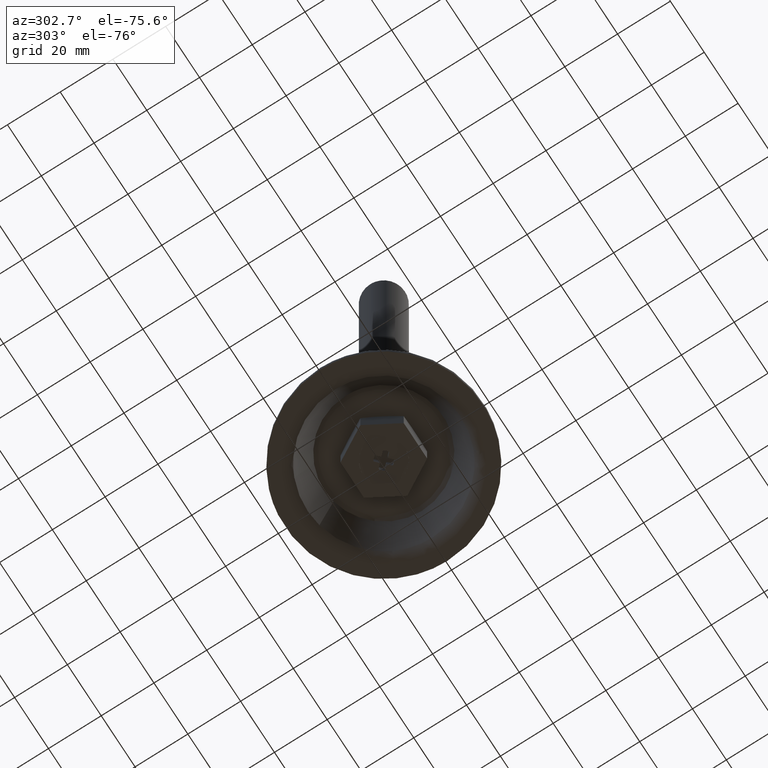
[diagram: clean part render]
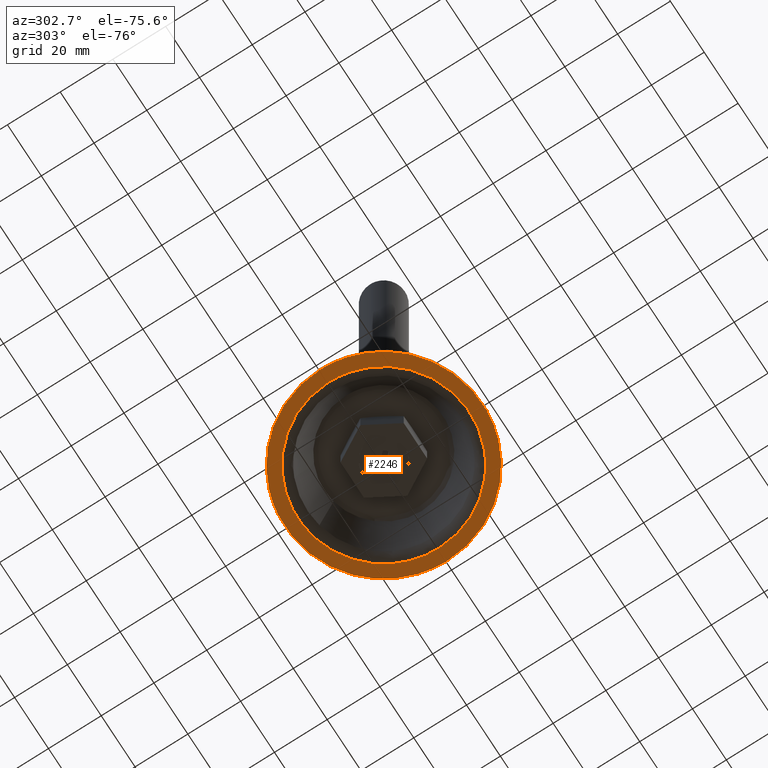
[diagram: same view with one face highlighted and labeled with its STEP entity id]
A machine part, auxiliary view. The second image highlights one B-rep face of the part: STEP entity #2246.
In plain terms, the highlighted face is a freeform B-spline surface patch.
Its self-contained STEP definition (entity closure, byte-faithful):
#1165=CARTESIAN_POINT('',(-4.426275188938440,37.237858262146503,4.130729E-013));
#1166=VERTEX_POINT('',#1165);
#1167=CARTESIAN_POINT('',(37.500000000000000,0.0,0.0));
#1168=VERTEX_POINT('',#1167);
#1169=CARTESIAN_POINT('',(-4.426275188938440,37.237858262146496,4.130729E-013));
#1170=CARTESIAN_POINT('',(-2.220900136086220,37.500000000000007,0.0));
#1171=CARTESIAN_POINT('',(0.0,37.500000000000000,0.0));
#1172=CARTESIAN_POINT('',(37.500000000000000,37.500000000000000,0.0));
#1173=CARTESIAN_POINT('',(37.500000000000000,0.0,0.0));
#1181=(BOUNDED_CURVE()B_SPLINE_CURVE(2,(#1169,#1170,#1171,#1172,#1173),.UNSPECIFIED.,.F.,.U.)B_SPLINE_CURVE_WITH_KNOTS((3,2,3),(0.229562512595084,0.250000000000000,0.500000000000000),.UNSPECIFIED.)CURVE()GEOMETRIC_REPRESENTATION_ITEM()RATIONAL_B_SPLINE_CURVE((0.956026830785202,0.976055994118060,1.0,0.707106781186547,1.0))REPRESENTATION_ITEM(''));
#1182=EDGE_CURVE('',#1166,#1168,#1181,.T.);
#1223=CARTESIAN_POINT('',(2.289264045361970,-37.430058377291417,5.853172E-012));
#1224=VERTEX_POINT('',#1223);
#1230=CARTESIAN_POINT('',(37.500000000000000,0.0,0.0));
#1231=CARTESIAN_POINT('',(37.500000000000007,-35.276530562357387,0.0));
#1232=CARTESIAN_POINT('',(2.289264045361970,-37.430058377291417,5.853172E-012));
#1240=(BOUNDED_CURVE()B_SPLINE_CURVE(2,(#1230,#1231,#1232),.UNSPECIFIED.,.F.,.U.)B_SPLINE_CURVE_WITH_KNOTS((3,3),(0.500000000000000,0.739333221256336),.UNSPECIFIED.)CURVE()GEOMETRIC_REPRESENTATION_ITEM()RATIONAL_B_SPLINE_CURVE((1.0,0.719603689828958,0.976072596790927))REPRESENTATION_ITEM(''));
#1241=EDGE_CURVE('',#1168,#1224,#1240,.T.);
#1264=CARTESIAN_POINT('',(-37.500000000000000,0.0,0.0));
#1265=VERTEX_POINT('',#1264);
#1266=CARTESIAN_POINT('',(-37.500000000000000,0.0,0.0));
#1267=CARTESIAN_POINT('',(-37.500000000000000,33.306552479027509,0.0));
#1268=CARTESIAN_POINT('',(-4.426275188938440,37.237858262146496,4.130729E-013));
#1276=(BOUNDED_CURVE()B_SPLINE_CURVE(2,(#1266,#1267,#1268),.UNSPECIFIED.,.F.,.U.)B_SPLINE_CURVE_WITH_KNOTS((3,3),(0.0,0.229562512595084),.UNSPECIFIED.)CURVE()GEOMETRIC_REPRESENTATION_ITEM()RATIONAL_B_SPLINE_CURVE((1.0,0.731050787068488,0.956026830785202))REPRESENTATION_ITEM(''));
#1277=EDGE_CURVE('',#1265,#1166,#1276,.T.);
#1279=CARTESIAN_POINT('',(2.289264045361970,-37.430058377291417,5.853172E-012));
#1280=CARTESIAN_POINT('',(1.145700451331012,-37.500000000000000,0.0));
#1281=CARTESIAN_POINT('',(0.0,-37.500000000000000,0.0));
#1282=CARTESIAN_POINT('',(-37.500000000000000,-37.500000000000000,0.0));
#1283=CARTESIAN_POINT('',(-37.500000000000000,0.0,0.0));
#1291=(BOUNDED_CURVE()B_SPLINE_CURVE(2,(#1279,#1280,#1281,#1282,#1283),.UNSPECIFIED.,.F.,.U.)B_SPLINE_CURVE_WITH_KNOTS((3,2,3),(0.739333221256336,0.750000000000000,1.0),.UNSPECIFIED.)CURVE()GEOMETRIC_REPRESENTATION_ITEM()RATIONAL_B_SPLINE_CURVE((0.976072596790927,0.987503091357590,1.0,0.707106781186547,1.0))REPRESENTATION_ITEM(''));
#1292=EDGE_CURVE('',#1224,#1265,#1291,.T.);
#1761=CARTESIAN_POINT('',(13.274496827823000,-29.701465750547019,6.899816E-016));
#1762=VERTEX_POINT('',#1761);
#1776=CARTESIAN_POINT('',(-32.532896183340213,0.0,0.0));
#1777=VERTEX_POINT('',#1776);
#1778=CARTESIAN_POINT('',(13.274496827822997,-29.701465750547019,6.899816E-016));
#1779=CARTESIAN_POINT('',(6.939218364442003,-32.532896183340213,0.0));
#1780=CARTESIAN_POINT('',(0.0,-32.532896183340213,0.0));
#1781=CARTESIAN_POINT('',(-32.532896183340213,-32.532896183340213,0.0));
#1782=CARTESIAN_POINT('',(-32.532896183340213,0.0,0.0));
#1790=(BOUNDED_CURVE()B_SPLINE_CURVE(2,(#1778,#1779,#1780,#1781,#1782),.UNSPECIFIED.,.F.,.U.)B_SPLINE_CURVE_WITH_KNOTS((3,2,3),(0.680709483574477,0.750000000000000,1.0),.UNSPECIFIED.)CURVE()GEOMETRIC_REPRESENTATION_ITEM()RATIONAL_B_SPLINE_CURVE((0.882641638328805,0.918821110443529,1.0,0.707106781186547,1.0))REPRESENTATION_ITEM(''));
#1791=EDGE_CURVE('',#1762,#1777,#1790,.T.);
#1793=CARTESIAN_POINT('',(28.893650885810590,14.951463893527560,6.131464E-016));
#1794=VERTEX_POINT('',#1793);
#1795=CARTESIAN_POINT('',(-32.532896183340213,0.0,0.0));
#1796=CARTESIAN_POINT('',(-32.532896183340213,32.532896183340213,0.0));
#1797=CARTESIAN_POINT('',(0.0,32.532896183340213,0.0));
#1798=CARTESIAN_POINT('',(19.795868431316350,32.532896183340206,0.0));
#1799=CARTESIAN_POINT('',(28.893650885810583,14.951463893527558,6.131464E-016));
#1807=(BOUNDED_CURVE()B_SPLINE_CURVE(2,(#1795,#1796,#1797,#1798,#1799),.UNSPECIFIED.,.F.,.U.)B_SPLINE_CURVE_WITH_KNOTS((3,2,3),(0.0,0.250000000000000,0.421825371003047),.UNSPECIFIED.)CURVE()GEOMETRIC_REPRESENTATION_ITEM()RATIONAL_B_SPLINE_CURVE((1.0,0.707106781186547,1.0,0.798694056052407,0.874103860136125))REPRESENTATION_ITEM(''));
#1808=EDGE_CURVE('',#1777,#1794,#1807,.T.);
#1855=CARTESIAN_POINT('',(32.532896183340213,0.0,0.0));
#1856=VERTEX_POINT('',#1855);
#1857=CARTESIAN_POINT('',(28.893650885810590,14.951463893527562,6.131464E-016));
#1858=CARTESIAN_POINT('',(32.532896183340206,7.918635278174629,0.0));
#1859=CARTESIAN_POINT('',(32.532896183340213,0.0,0.0));
#1867=(BOUNDED_CURVE()B_SPLINE_CURVE(2,(#1857,#1858,#1859),.UNSPECIFIED.,.F.,.U.)B_SPLINE_CURVE_WITH_KNOTS((3,3),(0.421825371003047,0.500000000000000),.UNSPECIFIED.)CURVE()GEOMETRIC_REPRESENTATION_ITEM()RATIONAL_B_SPLINE_CURVE((0.874103860136124,0.908412725134140,1.0))REPRESENTATION_ITEM(''));
#1868=EDGE_CURVE('',#1794,#1856,#1867,.T.);
#1870=CARTESIAN_POINT('',(32.532896183340213,0.0,0.0));
#1871=CARTESIAN_POINT('',(32.532896183340206,-21.094295883848318,0.0));
#1872=CARTESIAN_POINT('',(13.274496827822997,-29.701465750547019,6.899816E-016));
#1880=(BOUNDED_CURVE()B_SPLINE_CURVE(2,(#1870,#1871,#1872),.UNSPECIFIED.,.F.,.U.)B_SPLINE_CURVE_WITH_KNOTS((3,3),(0.500000000000000,0.680709483574477),.UNSPECIFIED.)CURVE()GEOMETRIC_REPRESENTATION_ITEM()RATIONAL_B_SPLINE_CURVE((1.0,0.788285670743019,0.882641638328805))REPRESENTATION_ITEM(''));
#1881=EDGE_CURVE('',#1856,#1762,#1880,.T.);
#2229=CARTESIAN_POINT('',(-41.246249854635451,-41.245338546059941,0.0));
#2230=CARTESIAN_POINT('',(41.246251866292212,-41.245338546059941,0.0));
#2231=CARTESIAN_POINT('',(-41.246249854635451,41.245567874930721,0.0));
#2232=CARTESIAN_POINT('',(41.246251866292212,41.245567874930721,0.0));
#2233=B_SPLINE_SURFACE_WITH_KNOTS('',1,1,((#2229,#2231),(#2230,#2232)),.UNSPECIFIED.,.F.,.F.,.U.,(2,2),(2,2),(0.0,82.492501720927663),(0.0,82.490906420990655),.UNSPECIFIED.);
#2234=ORIENTED_EDGE('',*,*,#1277,.T.);
#2235=ORIENTED_EDGE('',*,*,#1182,.T.);
#2236=ORIENTED_EDGE('',*,*,#1241,.T.);
#2237=ORIENTED_EDGE('',*,*,#1292,.T.);
#2238=EDGE_LOOP('',(#2234,#2235,#2236,#2237));
#2239=FACE_OUTER_BOUND('',#2238,.T.);
#2240=ORIENTED_EDGE('',*,*,#1808,.F.);
#2241=ORIENTED_EDGE('',*,*,#1791,.F.);
#2242=ORIENTED_EDGE('',*,*,#1881,.F.);
#2243=ORIENTED_EDGE('',*,*,#1868,.F.);
#2244=EDGE_LOOP('',(#2240,#2241,#2242,#2243));
#2245=FACE_BOUND('',#2244,.T.);
#2246=ADVANCED_FACE('',(#2239,#2245),#2233,.F.);